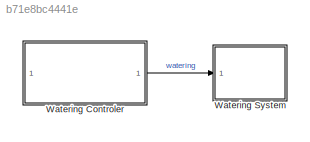
MODEL slx_b71e8bc4441e
KIND model
CONFIG AbsTol = auto
CONFIG EnableMultiTasking = off
CONFIG FixedStep = auto
CONFIG MaxStep = auto
CONFIG MinStep = auto
CONFIG RelTol = 1e-3
CONFIG SampleTimeConstraint = Unconstrained
CONFIG Solver = VariableStepAuto
CONFIG SolverName = VariableStepAuto
CONFIG StartTime = 0.0
CONFIG StopTime = intervals
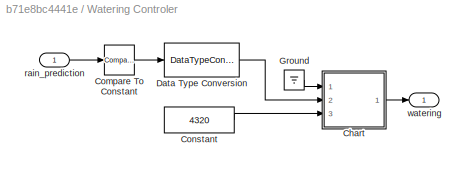
BLOCK [SubSystem] Watering Controler
  Ports = [1, 1]
  RequestExecContextInheritance = off
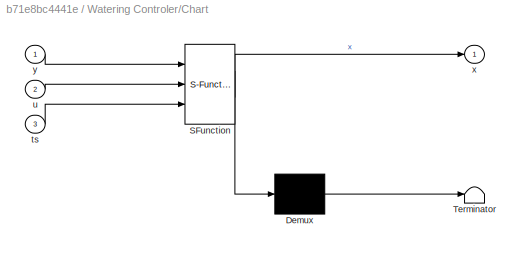
BLOCK [SubSystem] Watering Controler/Chart
  ErrorFcn = Stateflow.Translate.translate
  PermitHierarchicalResolution = ExplicitOnly
  Ports = [3, 1]
  RequestExecContextInheritance = off
  SFBlockType = Chart
  TreatAsAtomicUnit = on
BLOCK [Demux] Watering Controler/Chart/ Demux 
  Outputs = 1
  Ports = [1, 1]
BLOCK [S-Function] Watering Controler/Chart/ SFunction 
  EnableBusSupport = on
  FunctionName = sf_sfun
  PortCounts = [3 2]
  Ports = [3, 2]
  SFcnIsStateOwnerBlock = off
  SFunctionDeploymentMode = off
  Tag = Stateflow S-Function watering 11
BLOCK [Terminator] Watering Controler/Chart/ Terminator 
BLOCK [Inport] Watering Controler/Chart/ts
  IconDisplay = Port number
  Port = 3
BLOCK [Inport] Watering Controler/Chart/u
  IconDisplay = Port number
  Port = 2
BLOCK [Outport] Watering Controler/Chart/x
  IconDisplay = Port number
BLOCK [Inport] Watering Controler/Chart/y
  IconDisplay = Port number
BLOCK [Reference] Watering Controler/Compare To Constant  REF=simulink/Logic and Bit
Operations/Compare
To Constant
  Ports = [1, 1]
  SourceBlock = simulink/Logic and Bit\nOperations/Compare\nTo Constant
  SourceProductBaseCode = SL
  SourceProductName = Simulink
  SourceType = Compare To Constant
BLOCK [Constant] Watering Controler/Constant
  Value = 4320
BLOCK [DataTypeConversion] Watering Controler/Data Type Conversion
  RndMeth = Floor
  SaturateOnIntegerOverflow = off
BLOCK [Ground] Watering Controler/Ground
BLOCK [Inport] Watering Controler/rain_prediction
  IconDisplay = Port number
BLOCK [Outport] Watering Controler/watering
  IconDisplay = Port number
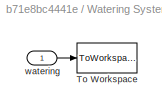
BLOCK [SubSystem] Watering System
  Ports = [1]
  RequestExecContextInheritance = off
BLOCK [ToWorkspace] Watering System/To Workspace
  FixptAsFi = on
  MaxDataPoints = inf
  Ports = [1]
  SampleTime = -1
  Save2DSignal = 3-D array (concatenate along third dimension)
  SaveFormat = Timeseries
  VariableName = watering_state
BLOCK [Inport] Watering System/watering
  IconDisplay = Port number
LINE Watering Controler/Chart:1 -> Watering Controler/watering:1
LINE Watering Controler/Compare To Constant:1 -> Watering Controler/Data Type Conversion:1
LINE Watering Controler/Constant:1 -> Watering Controler/Chart:3
LINE Watering Controler/Data Type Conversion:1 -> Watering Controler/Chart:2
LINE Watering Controler/Ground:1 -> Watering Controler/Chart:1
LINE Watering Controler/rain_prediction:1 -> Watering Controler/Compare To Constant:1
LINE Watering Controler:1 -> Watering System:1
LINE Watering System/watering:1 -> Watering System/To Workspace:1
CHART Watering Controler/Chart states=3 transitions=7
  STATE_LABEL 'Idle\nx=0;\nt1=ts/timeStep;'
  STATE_LABEL 'State1\nx=1;'
  STATE_LABEL 'Wait'
